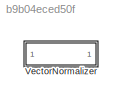
MODEL slx_b9b04eced50f
KIND library
CONFIG AbsTol = auto
CONFIG EnableMultiTasking = off
CONFIG FixedStep = auto
CONFIG MaxStep = auto
CONFIG MinStep = auto
CONFIG RelTol = 1e-3
CONFIG SampleTimeConstraint = Unconstrained
CONFIG SolverName = VariableStepAuto
CONFIG StartTime = 0.0
CONFIG StopTime = 10.0
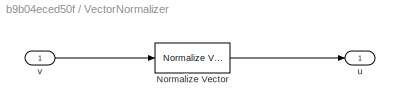
BLOCK [SubSystem] VectorNormalizer 
  Ports = [1, 1]
  RequestExecContextInheritance = off
BLOCK [Reference] VectorNormalizer /Normalize Vector  REF=vrlib/Utilities/Normalize Vector
  Ports = [1, 1]
  SourceBlock = vrlib/Utilities/Normalize Vector
  SourceProductBaseCode = SL
  SourceType = Normalize Vector
BLOCK [Outport] VectorNormalizer /u
  VectorParamsAs1DForOutWhenUnconnected = off
BLOCK [Inport] VectorNormalizer /v
LINE VectorNormalizer /Normalize Vector:1 -> VectorNormalizer /u:1
LINE VectorNormalizer /v:1 -> VectorNormalizer /Normalize Vector:1
